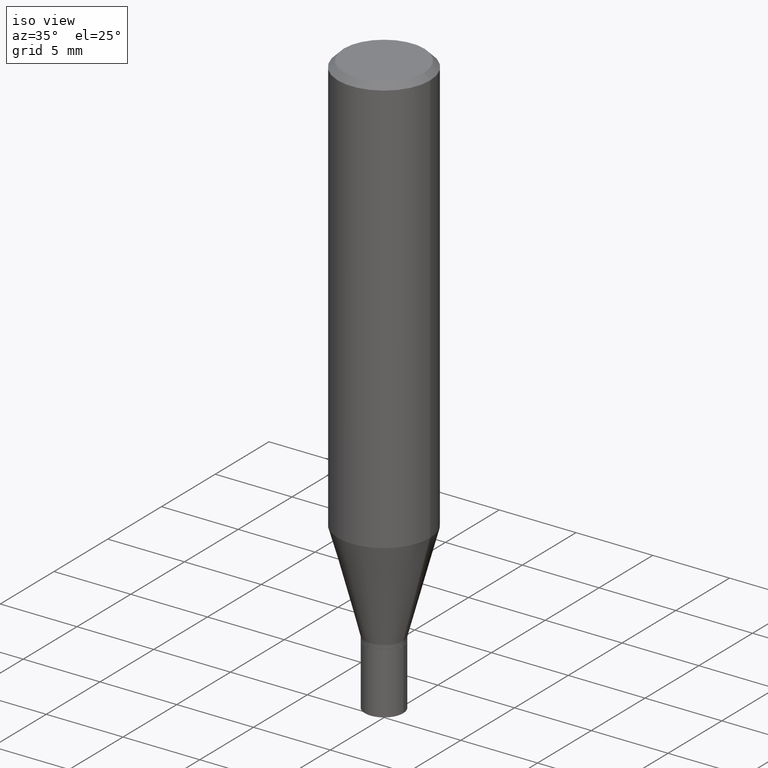
[diagram: clean part render]
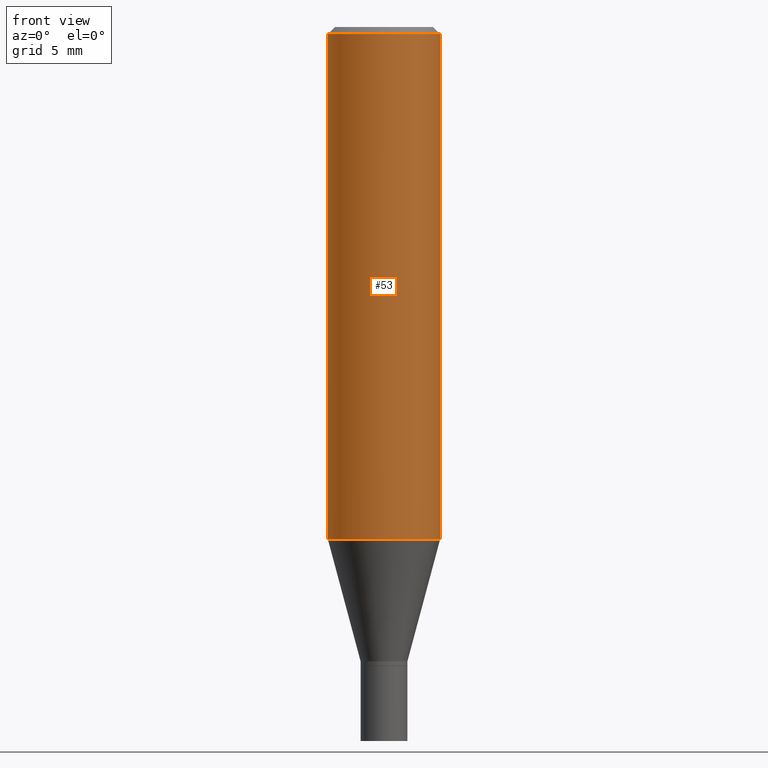
[diagram: tour spotlight — one face highlighted and labeled with its STEP entity id]
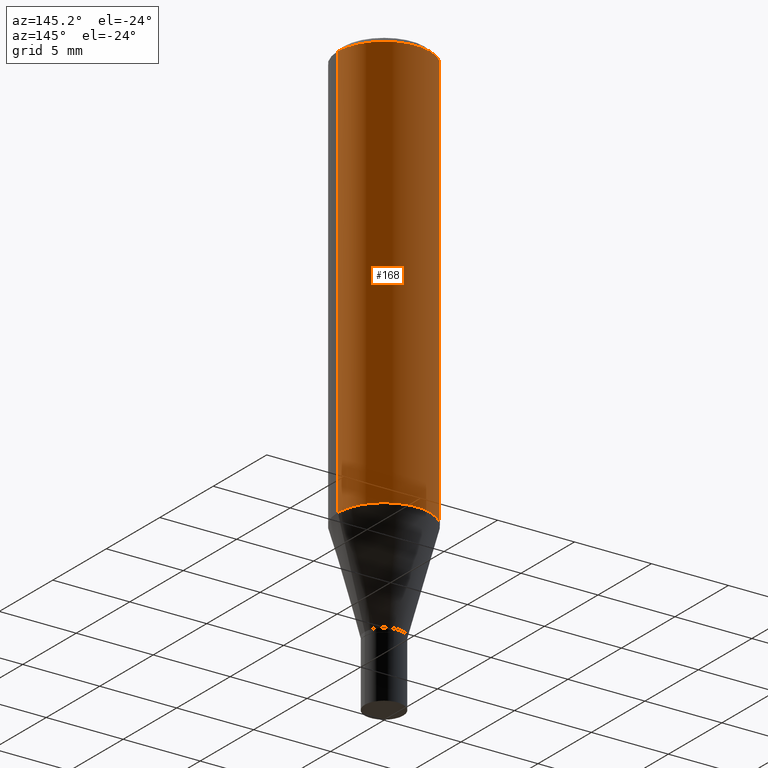
[diagram: tour spotlight — one face highlighted and labeled with its STEP entity id]
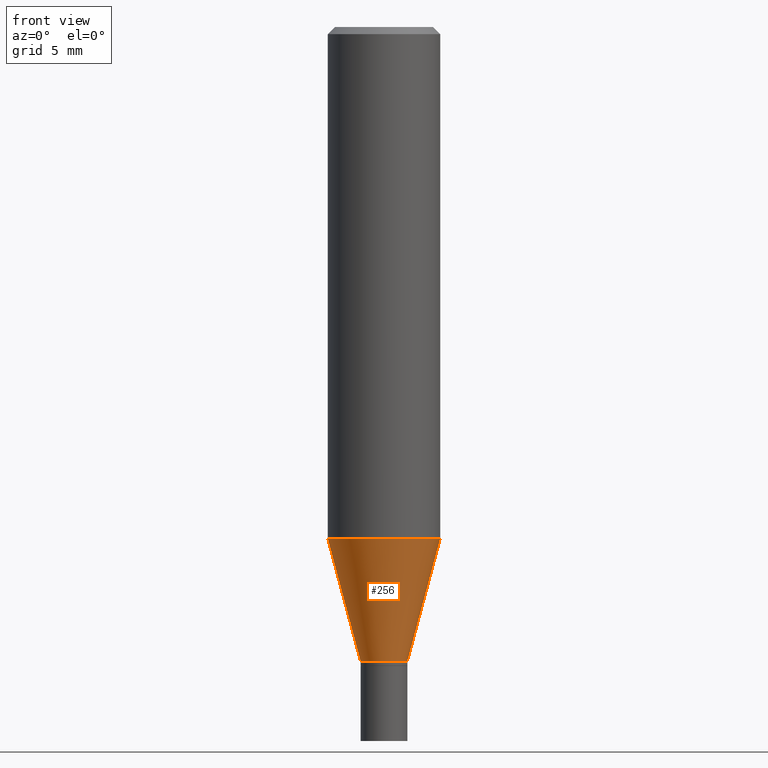
[diagram: tour spotlight — one face highlighted and labeled with its STEP entity id]
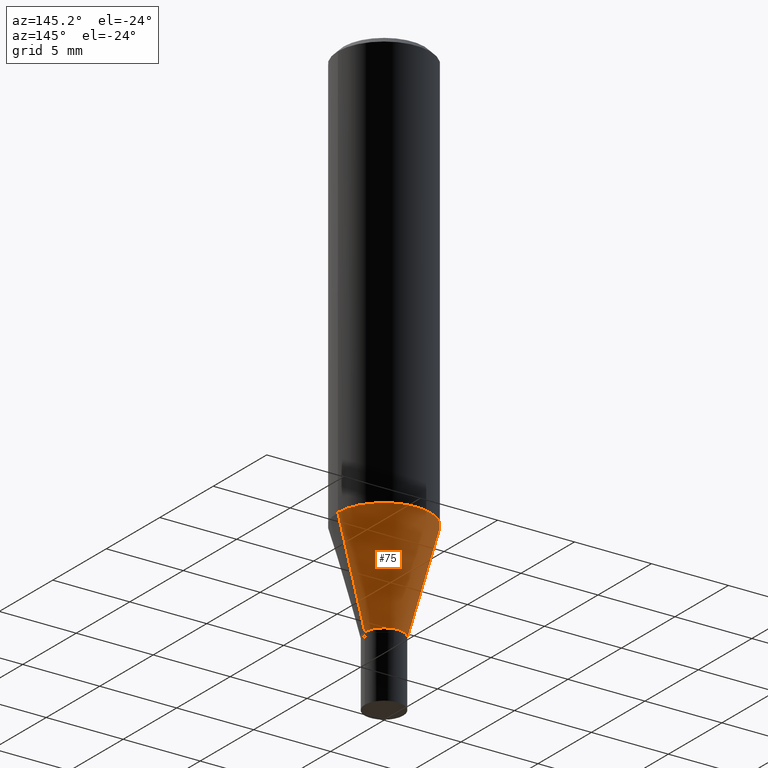
[diagram: tour spotlight — one face highlighted and labeled with its STEP entity id]
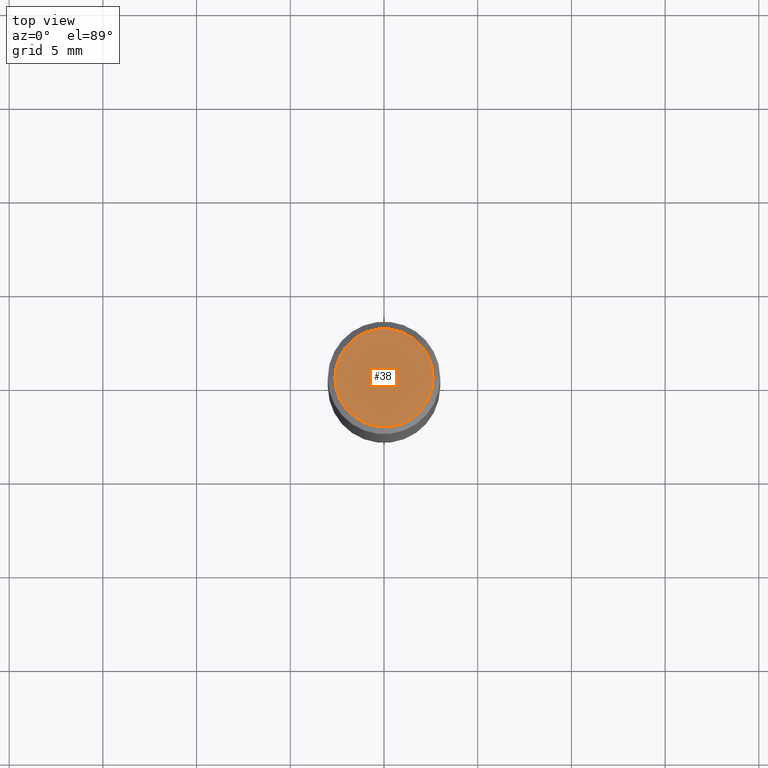
[diagram: tour spotlight — one face highlighted and labeled with its STEP entity id]
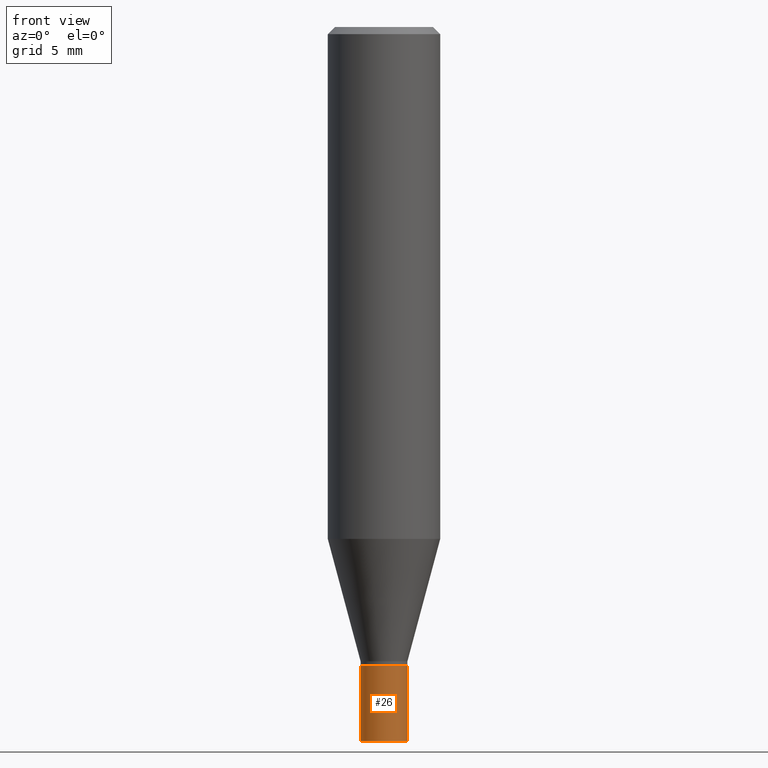
[diagram: tour spotlight — one face highlighted and labeled with its STEP entity id]
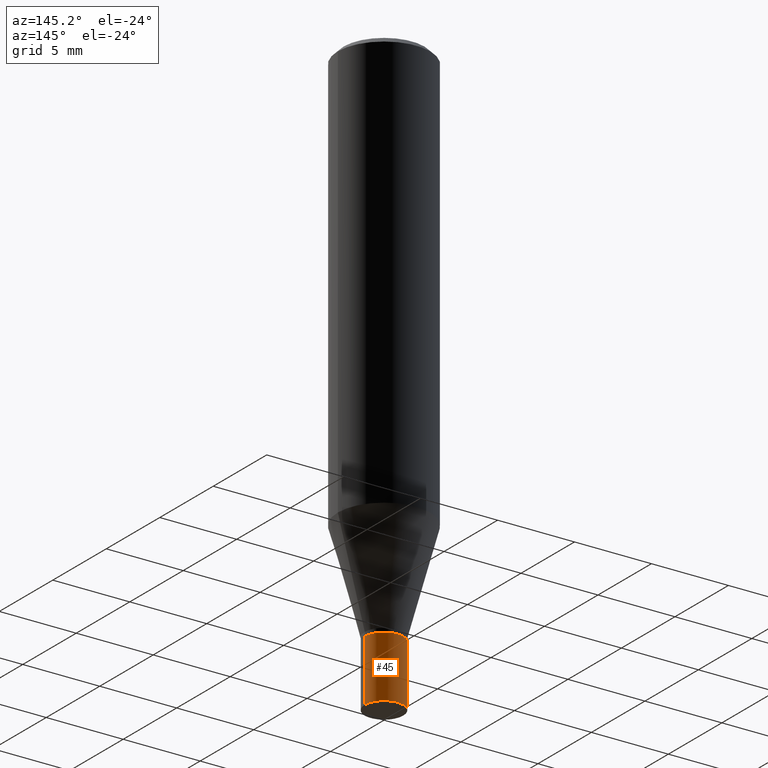
[diagram: tour spotlight — one face highlighted and labeled with its STEP entity id]
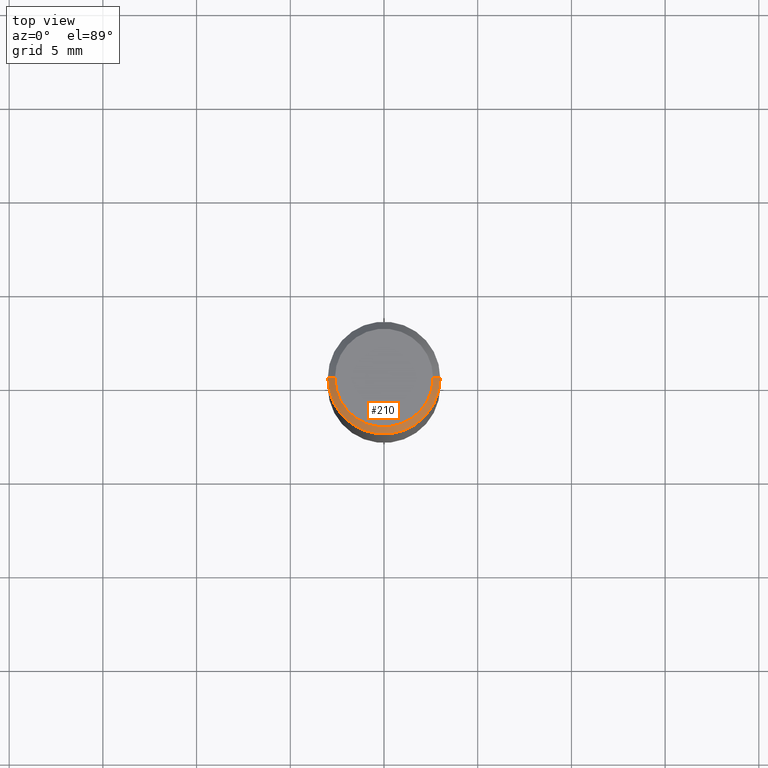
[diagram: tour spotlight — one face highlighted and labeled with its STEP entity id]
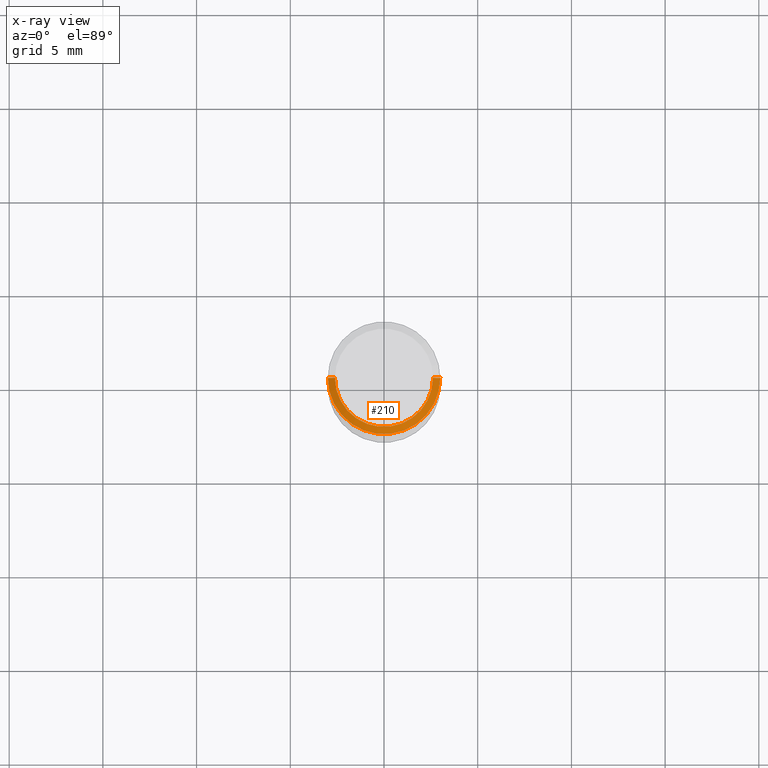
[diagram: x-ray of the same camera — body ghosted, this tour face saturated]
A machine part: a face-by-face anatomy tour. The part has 16 B-rep faces; the first image is the clean iso view, then the 8 largest visible faces are spotlighted one at a time (largest first), each with its STEP entity span.

Face 1 — front view, entity #53. In plain terms, the highlighted cylindrical surface (partial cylindrical patch) has radius 2.9997 mm, axis along (-0, 0, 1).
Definition (entity closure, byte-faithful):
#9 = ORIENTED_EDGE ( 'NONE', *, *, #216, .F. ) ;
#13 = CIRCLE ( 'NONE', #218, 0.1180999999999999966 ) ;
#22 = CARTESIAN_POINT ( 'NONE',  ( 3.668203209277705088E-31, -5.237222008264718399E-17, -0.01499999999999999944 ) ) ;
#23 = DIRECTION ( 'NONE',  ( -2.445468806185136597E-29, 3.491481338843145583E-15, 1.000000000000000000 ) ) ;
#29 = DIRECTION ( 'NONE',  ( -2.445468806185136877E-29, 3.491481338843145188E-15, 1.000000000000000000 ) ) ;
#51 = LINE ( 'NONE', #292, #430 ) ;
#53 = ADVANCED_FACE ( 'NONE', ( #149 ), #398, .T. ) ;
#88 = DIRECTION ( 'NONE',  ( 1.000000000000000000, -6.982962677686265133E-15, 0.000000000000000000 ) ) ;
#109 = CARTESIAN_POINT ( 'NONE',  ( 0.000000000000000000, 0.000000000000000000, 0.000000000000000000 ) ) ;
#123 = DIRECTION ( 'NONE',  ( -2.445468806185136597E-29, 3.491481338843145583E-15, 1.000000000000000000 ) ) ;
#125 = DIRECTION ( 'NONE',  ( -2.445468806185136877E-29, 3.491481338843145188E-15, 1.000000000000000000 ) ) ;
#139 = VERTEX_POINT ( 'NONE', #179 ) ;
#149 = FACE_OUTER_BOUND ( 'NONE', #411, .T. ) ;
#156 = DIRECTION ( 'NONE',  ( 1.000000000000000000, -6.982962677686266711E-15, 0.000000000000000000 ) ) ;
#170 = VERTEX_POINT ( 'NONE', #362 ) ;
#179 = CARTESIAN_POINT ( 'NONE',  ( 0.1180999999999999966, -4.579293198051621365E-15, -1.075361699358504897 ) ) ;
#194 = CARTESIAN_POINT ( 'NONE',  ( 2.629763491147462356E-29, -3.754605305816872313E-15, -1.075361699358504897 ) ) ;
#196 = EDGE_CURVE ( 'NONE', #139, #170, #51, .T. ) ;
#204 = VERTEX_POINT ( 'NONE', #406 ) ;
#216 = EDGE_CURVE ( 'NONE', #311, #170, #13, .T. ) ;
#218 = AXIS2_PLACEMENT_3D ( 'NONE', #22, #123, #156 ) ;
#219 = VECTOR ( 'NONE', #29, 39.37007874015748143 ) ;
#234 = ORIENTED_EDGE ( 'NONE', *, *, #428, .F. ) ;
#244 = AXIS2_PLACEMENT_3D ( 'NONE', #109, #319, #402 ) ;
#276 = ORIENTED_EDGE ( 'NONE', *, *, #196, .T. ) ;
#292 = CARTESIAN_POINT ( 'NONE',  ( 0.1180999999999999966, -8.246878922347480654E-16, 5.758764772215000440E-30 ) ) ;
#311 = VERTEX_POINT ( 'NONE', #380 ) ;
#319 = DIRECTION ( 'NONE',  ( -2.445468806185136597E-29, 3.491481338843145583E-15, 1.000000000000000000 ) ) ;
#334 = EDGE_CURVE ( 'NONE', #204, #139, #378, .T. ) ;
#362 = CARTESIAN_POINT ( 'NONE',  ( 0.1180999999999999966, -8.770601123173952432E-16, -0.01499999999999999944 ) ) ;
#378 = CIRCLE ( 'NONE', #461, 0.1180999999999999966 ) ;
#380 = CARTESIAN_POINT ( 'NONE',  ( -0.1180999999999999966, -1.064337792017081499E-15, -0.01499999999999999944 ) ) ;
#381 = LINE ( 'NONE', #454, #219 ) ;
#398 = CYLINDRICAL_SURFACE ( 'NONE', #244, 0.1180999999999999966 ) ;
#402 = DIRECTION ( 'NONE',  ( 1.000000000000000000, -6.982962677686266711E-15, 4.876176775795936353E-29 ) ) ;
#406 = CARTESIAN_POINT ( 'NONE',  ( -0.1180999999999999966, -2.915454334884194116E-15, -1.075361699358504897 ) ) ;
#411 = EDGE_LOOP ( 'NONE', ( #234, #413, #276, #9 ) ) ;
#413 = ORIENTED_EDGE ( 'NONE', *, *, #334, .T. ) ;
#428 = EDGE_CURVE ( 'NONE', #204, #311, #381, .T. ) ;
#430 = VECTOR ( 'NONE', #125, 39.37007874015748143 ) ;
#454 = CARTESIAN_POINT ( 'NONE',  ( -0.1180999999999999966, 8.391509709326782957E-16, -5.809262341591043784E-30 ) ) ;
#461 = AXIS2_PLACEMENT_3D ( 'NONE', #194, #23, #88 ) ;

Face 2 — auxiliary view, entity #168. In plain terms, the highlighted cylindrical surface (partial cylindrical patch) has radius 2.9997 mm, axis along (-0, 0, 1).
Definition (entity closure, byte-faithful):
#29 = DIRECTION ( 'NONE',  ( -2.445468806185136877E-29, 3.491481338843145188E-15, 1.000000000000000000 ) ) ;
#51 = LINE ( 'NONE', #292, #430 ) ;
#81 = EDGE_CURVE ( 'NONE', #139, #204, #303, .T. ) ;
#82 = CARTESIAN_POINT ( 'NONE',  ( 3.668203209277705088E-31, -5.237222008264718399E-17, -0.01499999999999999944 ) ) ;
#110 = DIRECTION ( 'NONE',  ( -2.445468806185136597E-29, 3.491481338843145583E-15, 1.000000000000000000 ) ) ;
#125 = DIRECTION ( 'NONE',  ( -2.445468806185136877E-29, 3.491481338843145188E-15, 1.000000000000000000 ) ) ;
#126 = AXIS2_PLACEMENT_3D ( 'NONE', #396, #318, #432 ) ;
#133 = EDGE_CURVE ( 'NONE', #170, #311, #252, .T. ) ;
#139 = VERTEX_POINT ( 'NONE', #179 ) ;
#168 = ADVANCED_FACE ( 'NONE', ( #283 ), #209, .T. ) ;
#170 = VERTEX_POINT ( 'NONE', #362 ) ;
#176 = ORIENTED_EDGE ( 'NONE', *, *, #133, .F. ) ;
#179 = CARTESIAN_POINT ( 'NONE',  ( 0.1180999999999999966, -4.579293198051621365E-15, -1.075361699358504897 ) ) ;
#183 = DIRECTION ( 'NONE',  ( -2.445468806185136597E-29, 3.491481338843145583E-15, 1.000000000000000000 ) ) ;
#196 = EDGE_CURVE ( 'NONE', #139, #170, #51, .T. ) ;
#197 = ORIENTED_EDGE ( 'NONE', *, *, #428, .T. ) ;
#200 = ORIENTED_EDGE ( 'NONE', *, *, #196, .F. ) ;
#204 = VERTEX_POINT ( 'NONE', #406 ) ;
#209 = CYLINDRICAL_SURFACE ( 'NONE', #439, 0.1180999999999999966 ) ;
#219 = VECTOR ( 'NONE', #29, 39.37007874015748143 ) ;
#246 = DIRECTION ( 'NONE',  ( 1.000000000000000000, -6.982962677686266711E-15, 4.876176775795936353E-29 ) ) ;
#252 = CIRCLE ( 'NONE', #315, 0.1180999999999999966 ) ;
#257 = CARTESIAN_POINT ( 'NONE',  ( 0.000000000000000000, 0.000000000000000000, 0.000000000000000000 ) ) ;
#283 = FACE_OUTER_BOUND ( 'NONE', #331, .T. ) ;
#292 = CARTESIAN_POINT ( 'NONE',  ( 0.1180999999999999966, -8.246878922347480654E-16, 5.758764772215000440E-30 ) ) ;
#303 = CIRCLE ( 'NONE', #126, 0.1180999999999999966 ) ;
#311 = VERTEX_POINT ( 'NONE', #380 ) ;
#315 = AXIS2_PLACEMENT_3D ( 'NONE', #82, #183, #323 ) ;
#318 = DIRECTION ( 'NONE',  ( -2.445468806185136597E-29, 3.491481338843145583E-15, 1.000000000000000000 ) ) ;
#323 = DIRECTION ( 'NONE',  ( 1.000000000000000000, -6.982962677686266711E-15, 0.000000000000000000 ) ) ;
#331 = EDGE_LOOP ( 'NONE', ( #357, #197, #176, #200 ) ) ;
#357 = ORIENTED_EDGE ( 'NONE', *, *, #81, .T. ) ;
#362 = CARTESIAN_POINT ( 'NONE',  ( 0.1180999999999999966, -8.770601123173952432E-16, -0.01499999999999999944 ) ) ;
#380 = CARTESIAN_POINT ( 'NONE',  ( -0.1180999999999999966, -1.064337792017081499E-15, -0.01499999999999999944 ) ) ;
#381 = LINE ( 'NONE', #454, #219 ) ;
#396 = CARTESIAN_POINT ( 'NONE',  ( 2.629763491147462356E-29, -3.754605305816872313E-15, -1.075361699358504897 ) ) ;
#406 = CARTESIAN_POINT ( 'NONE',  ( -0.1180999999999999966, -2.915454334884194116E-15, -1.075361699358504897 ) ) ;
#428 = EDGE_CURVE ( 'NONE', #204, #311, #381, .T. ) ;
#430 = VECTOR ( 'NONE', #125, 39.37007874015748143 ) ;
#432 = DIRECTION ( 'NONE',  ( 1.000000000000000000, -6.982962677686265133E-15, 0.000000000000000000 ) ) ;
#439 = AXIS2_PLACEMENT_3D ( 'NONE', #257, #110, #246 ) ;
#454 = CARTESIAN_POINT ( 'NONE',  ( -0.1180999999999999966, 8.391509709326782957E-16, -5.809262341591043784E-30 ) ) ;

Face 3 — front view, entity #256. In plain terms, the highlighted conical surface has half-angle 15 deg.
Definition (entity closure, byte-faithful):
#23 = DIRECTION ( 'NONE',  ( -2.445468806185136597E-29, 3.491481338843145583E-15, 1.000000000000000000 ) ) ;
#27 = DIRECTION ( 'NONE',  ( -0.2588190451025214611, 5.211531920934551042E-15, 0.9659258262890682012 ) ) ;
#48 = CONICAL_SURFACE ( 'NONE', #305, 0.04919999999999991741, 0.2617993877991501295 ) ;
#66 = CARTESIAN_POINT ( 'NONE',  ( 0.04919999999999991741, -4.995960647750656128E-15, -1.332500000000000018 ) ) ;
#87 = DIRECTION ( 'NONE',  ( -2.445468806185136597E-29, 3.491481338843145583E-15, 1.000000000000000000 ) ) ;
#88 = DIRECTION ( 'NONE',  ( 1.000000000000000000, -6.982962677686265133E-15, 0.000000000000000000 ) ) ;
#93 = DIRECTION ( 'NONE',  ( -2.445468806185136597E-29, 3.491481338843145583E-15, 1.000000000000000000 ) ) ;
#98 = VECTOR ( 'NONE', #27, 39.37007874015747433 ) ;
#101 = ORIENTED_EDGE ( 'NONE', *, *, #334, .F. ) ;
#119 = ORIENTED_EDGE ( 'NONE', *, *, #393, .F. ) ;
#127 = CARTESIAN_POINT ( 'NONE',  ( 3.258587184241694874E-29, -4.652398884008491604E-15, -1.332500000000000018 ) ) ;
#129 = CARTESIAN_POINT ( 'NONE',  ( 0.04919999999999991741, -4.995960647750656128E-15, -1.332500000000000018 ) ) ;
#134 = LINE ( 'NONE', #195, #98 ) ;
#137 = DIRECTION ( 'NONE',  ( 0.2588190451025214611, 1.565188264969621573E-15, 0.9659258262890682012 ) ) ;
#139 = VERTEX_POINT ( 'NONE', #179 ) ;
#148 = AXIS2_PLACEMENT_3D ( 'NONE', #328, #93, #338 ) ;
#179 = CARTESIAN_POINT ( 'NONE',  ( 0.1180999999999999966, -4.579293198051621365E-15, -1.075361699358504897 ) ) ;
#192 = ORIENTED_EDGE ( 'NONE', *, *, #379, .T. ) ;
#194 = CARTESIAN_POINT ( 'NONE',  ( 2.629763491147462356E-29, -3.754605305816872313E-15, -1.075361699358504897 ) ) ;
#195 = CARTESIAN_POINT ( 'NONE',  ( -0.04919999999999991741, -4.302811858014522949E-15, -1.332500000000000018 ) ) ;
#198 = EDGE_CURVE ( 'NONE', #458, #389, #354, .T. ) ;
#204 = VERTEX_POINT ( 'NONE', #406 ) ;
#256 = ADVANCED_FACE ( 'NONE', ( #341 ), #48, .T. ) ;
#298 = DIRECTION ( 'NONE',  ( 1.000000000000000000, -6.982962677686273810E-15, 0.000000000000000000 ) ) ;
#305 = AXIS2_PLACEMENT_3D ( 'NONE', #127, #87, #298 ) ;
#306 = LINE ( 'NONE', #129, #384 ) ;
#308 = CARTESIAN_POINT ( 'NONE',  ( -0.04919999999999991741, -3.609133096449358138E-15, -1.332500000000000018 ) ) ;
#316 = ORIENTED_EDGE ( 'NONE', *, *, #198, .T. ) ;
#328 = CARTESIAN_POINT ( 'NONE',  ( 3.258587184241694874E-29, -4.652398884008491604E-15, -1.332500000000000018 ) ) ;
#334 = EDGE_CURVE ( 'NONE', #204, #139, #378, .T. ) ;
#338 = DIRECTION ( 'NONE',  ( 1.000000000000000000, -6.982962677686273810E-15, 0.000000000000000000 ) ) ;
#341 = FACE_OUTER_BOUND ( 'NONE', #460, .T. ) ;
#354 = CIRCLE ( 'NONE', #148, 0.04919999999999991741 ) ;
#378 = CIRCLE ( 'NONE', #461, 0.1180999999999999966 ) ;
#379 = EDGE_CURVE ( 'NONE', #389, #139, #306, .T. ) ;
#384 = VECTOR ( 'NONE', #137, 39.37007874015747433 ) ;
#389 = VERTEX_POINT ( 'NONE', #66 ) ;
#393 = EDGE_CURVE ( 'NONE', #458, #204, #134, .T. ) ;
#406 = CARTESIAN_POINT ( 'NONE',  ( -0.1180999999999999966, -2.915454334884194116E-15, -1.075361699358504897 ) ) ;
#458 = VERTEX_POINT ( 'NONE', #308 ) ;
#460 = EDGE_LOOP ( 'NONE', ( #119, #316, #192, #101 ) ) ;
#461 = AXIS2_PLACEMENT_3D ( 'NONE', #194, #23, #88 ) ;

Face 4 — auxiliary view, entity #75. In plain terms, the highlighted conical surface has half-angle 15 deg.
Definition (entity closure, byte-faithful):
#17 = DIRECTION ( 'NONE',  ( 1.000000000000000000, -6.982962677686273810E-15, 0.000000000000000000 ) ) ;
#27 = DIRECTION ( 'NONE',  ( -0.2588190451025214611, 5.211531920934551042E-15, 0.9659258262890682012 ) ) ;
#58 = DIRECTION ( 'NONE',  ( -2.445468806185136597E-29, 3.491481338843145583E-15, 1.000000000000000000 ) ) ;
#66 = CARTESIAN_POINT ( 'NONE',  ( 0.04919999999999991741, -4.995960647750656128E-15, -1.332500000000000018 ) ) ;
#75 = ADVANCED_FACE ( 'NONE', ( #111 ), #261, .T. ) ;
#81 = EDGE_CURVE ( 'NONE', #139, #204, #303, .T. ) ;
#83 = DIRECTION ( 'NONE',  ( -2.445468806185136597E-29, 3.491481338843145583E-15, 1.000000000000000000 ) ) ;
#98 = VECTOR ( 'NONE', #27, 39.37007874015747433 ) ;
#111 = FACE_OUTER_BOUND ( 'NONE', #264, .T. ) ;
#126 = AXIS2_PLACEMENT_3D ( 'NONE', #396, #318, #432 ) ;
#129 = CARTESIAN_POINT ( 'NONE',  ( 0.04919999999999991741, -4.995960647750656128E-15, -1.332500000000000018 ) ) ;
#134 = LINE ( 'NONE', #195, #98 ) ;
#137 = DIRECTION ( 'NONE',  ( 0.2588190451025214611, 1.565188264969621573E-15, 0.9659258262890682012 ) ) ;
#139 = VERTEX_POINT ( 'NONE', #179 ) ;
#146 = AXIS2_PLACEMENT_3D ( 'NONE', #412, #58, #17 ) ;
#178 = DIRECTION ( 'NONE',  ( 1.000000000000000000, -6.982962677686273810E-15, 0.000000000000000000 ) ) ;
#179 = CARTESIAN_POINT ( 'NONE',  ( 0.1180999999999999966, -4.579293198051621365E-15, -1.075361699358504897 ) ) ;
#195 = CARTESIAN_POINT ( 'NONE',  ( -0.04919999999999991741, -4.302811858014522949E-15, -1.332500000000000018 ) ) ;
#204 = VERTEX_POINT ( 'NONE', #406 ) ;
#221 = CIRCLE ( 'NONE', #146, 0.04919999999999991741 ) ;
#261 = CONICAL_SURFACE ( 'NONE', #462, 0.04919999999999991741, 0.2617993877991501295 ) ;
#264 = EDGE_LOOP ( 'NONE', ( #352, #266, #355, #391 ) ) ;
#266 = ORIENTED_EDGE ( 'NONE', *, *, #393, .T. ) ;
#290 = CARTESIAN_POINT ( 'NONE',  ( 3.258587184241694874E-29, -4.652398884008491604E-15, -1.332500000000000018 ) ) ;
#303 = CIRCLE ( 'NONE', #126, 0.1180999999999999966 ) ;
#306 = LINE ( 'NONE', #129, #384 ) ;
#308 = CARTESIAN_POINT ( 'NONE',  ( -0.04919999999999991741, -3.609133096449358138E-15, -1.332500000000000018 ) ) ;
#318 = DIRECTION ( 'NONE',  ( -2.445468806185136597E-29, 3.491481338843145583E-15, 1.000000000000000000 ) ) ;
#332 = EDGE_CURVE ( 'NONE', #389, #458, #221, .T. ) ;
#352 = ORIENTED_EDGE ( 'NONE', *, *, #332, .T. ) ;
#355 = ORIENTED_EDGE ( 'NONE', *, *, #81, .F. ) ;
#379 = EDGE_CURVE ( 'NONE', #389, #139, #306, .T. ) ;
#384 = VECTOR ( 'NONE', #137, 39.37007874015747433 ) ;
#389 = VERTEX_POINT ( 'NONE', #66 ) ;
#391 = ORIENTED_EDGE ( 'NONE', *, *, #379, .F. ) ;
#393 = EDGE_CURVE ( 'NONE', #458, #204, #134, .T. ) ;
#396 = CARTESIAN_POINT ( 'NONE',  ( 2.629763491147462356E-29, -3.754605305816872313E-15, -1.075361699358504897 ) ) ;
#406 = CARTESIAN_POINT ( 'NONE',  ( -0.1180999999999999966, -2.915454334884194116E-15, -1.075361699358504897 ) ) ;
#412 = CARTESIAN_POINT ( 'NONE',  ( 3.258587184241694874E-29, -4.652398884008491604E-15, -1.332500000000000018 ) ) ;
#432 = DIRECTION ( 'NONE',  ( 1.000000000000000000, -6.982962677686265133E-15, 0.000000000000000000 ) ) ;
#458 = VERTEX_POINT ( 'NONE', #308 ) ;
#462 = AXIS2_PLACEMENT_3D ( 'NONE', #290, #83, #178 ) ;

Face 5 — top view, entity #38. In plain terms, the highlighted planar face has unit normal (0, -0, -1).
Definition (entity closure, byte-faithful):
#7 = FACE_OUTER_BOUND ( 'NONE', #206, .T. ) ;
#38 = ADVANCED_FACE ( 'NONE', ( #7 ), #433, .F. ) ;
#39 = AXIS2_PLACEMENT_3D ( 'NONE', #171, #233, #434 ) ;
#90 = CARTESIAN_POINT ( 'NONE',  ( -2.356111900284270779E-44, 3.363903359250623461E-30, 9.634602143871708828E-16 ) ) ;
#118 = DIRECTION ( 'NONE',  ( -2.445468806185136597E-29, 3.491481338843145583E-15, 1.000000000000000000 ) ) ;
#136 = VERTEX_POINT ( 'NONE', #140 ) ;
#140 = CARTESIAN_POINT ( 'NONE',  ( -0.1031000000000000111, 7.461295621107793201E-16, 9.634602143871657552E-16 ) ) ;
#171 = CARTESIAN_POINT ( 'NONE',  ( -2.356111900284270779E-44, 3.363903359250623461E-30, 9.634602143871708828E-16 ) ) ;
#206 = EDGE_LOOP ( 'NONE', ( #317, #310 ) ) ;
#215 = CARTESIAN_POINT ( 'NONE',  ( 7.199434520694541042E-16, 0.1031000000000000111, 1.217583811588571567E-16 ) ) ;
#224 = VERTEX_POINT ( 'NONE', #444 ) ;
#232 = CIRCLE ( 'NONE', #39, 0.1031000000000000111 ) ;
#233 = DIRECTION ( 'NONE',  ( -2.445468806185136597E-29, 3.491481338843145583E-15, 1.000000000000000000 ) ) ;
#237 = EDGE_CURVE ( 'NONE', #224, #136, #326, .T. ) ;
#245 = DIRECTION ( 'NONE',  ( 2.438088387897960049E-29, -3.491481338843145188E-15, -1.000000000000000000 ) ) ;
#269 = AXIS2_PLACEMENT_3D ( 'NONE', #90, #118, #410 ) ;
#310 = ORIENTED_EDGE ( 'NONE', *, *, #237, .T. ) ;
#317 = ORIENTED_EDGE ( 'NONE', *, *, #358, .T. ) ;
#326 = CIRCLE ( 'NONE', #269, 0.1031000000000000111 ) ;
#358 = EDGE_CURVE ( 'NONE', #136, #224, #232, .T. ) ;
#397 = DIRECTION ( 'NONE',  ( -1.000000000000000000, 6.982962677686265922E-15, -4.876176775795935793E-29 ) ) ;
#407 = AXIS2_PLACEMENT_3D ( 'NONE', #215, #245, #397 ) ;
#410 = DIRECTION ( 'NONE',  ( 1.000000000000000000, -6.982962677686265922E-15, 4.824495916043694704E-29 ) ) ;
#433 = PLANE ( 'NONE',  #407 ) ;
#434 = DIRECTION ( 'NONE',  ( 1.000000000000000000, -6.982962677686265922E-15, 4.824495916043694704E-29 ) ) ;
#444 = CARTESIAN_POINT ( 'NONE',  ( 0.1031000000000000111, -7.849571885948532984E-16, 9.634602143871762076E-16 ) ) ;

Face 6 — front view, entity #26. In plain terms, the highlighted cylindrical surface (edge-blend (fillet) strip) has radius 1.2497 mm, axis along (-0, 0, 1).
Definition (entity closure, byte-faithful):
#1 = ORIENTED_EDGE ( 'NONE', *, *, #40, .F. ) ;
#4 = CARTESIAN_POINT ( 'NONE',  ( 0.000000000000000000, 0.000000000000000000, 0.000000000000000000 ) ) ;
#11 = VECTOR ( 'NONE', #34, 39.37007874015748143 ) ;
#12 = CYLINDRICAL_SURFACE ( 'NONE', #141, 0.04920000000000000068 ) ;
#26 = ADVANCED_FACE ( 'NONE', ( #74 ), #12, .T. ) ;
#31 = DIRECTION ( 'NONE',  ( -2.445468806185136597E-29, 3.491481338843145583E-15, 1.000000000000000000 ) ) ;
#34 = DIRECTION ( 'NONE',  ( -2.445468806185136877E-29, 3.491481338843145188E-15, 1.000000000000000000 ) ) ;
#35 = EDGE_LOOP ( 'NONE', ( #94, #173, #130, #1 ) ) ;
#40 = EDGE_CURVE ( 'NONE', #231, #429, #288, .T. ) ;
#41 = DIRECTION ( 'NONE',  ( -2.445468806185136597E-29, 3.491481338843145583E-15, 1.000000000000000000 ) ) ;
#59 = DIRECTION ( 'NONE',  ( 1.000000000000000000, -6.982962677686261977E-15, 0.000000000000000000 ) ) ;
#68 = VERTEX_POINT ( 'NONE', #359 ) ;
#74 = FACE_OUTER_BOUND ( 'NONE', #35, .T. ) ;
#76 = DIRECTION ( 'NONE',  ( 1.000000000000000000, -6.982962677686266711E-15, 4.876176775795935793E-29 ) ) ;
#92 = AXIS2_PLACEMENT_3D ( 'NONE', #438, #41, #217 ) ;
#94 = ORIENTED_EDGE ( 'NONE', *, *, #340, .F. ) ;
#106 = VECTOR ( 'NONE', #294, 39.37007874015748143 ) ;
#130 = ORIENTED_EDGE ( 'NONE', *, *, #465, .T. ) ;
#131 = CARTESIAN_POINT ( 'NONE',  ( 0.04920000000000000068, -3.435617637421643269E-16, 2.399078973691600472E-30 ) ) ;
#141 = AXIS2_PLACEMENT_3D ( 'NONE', #4, #142, #76 ) ;
#142 = DIRECTION ( 'NONE',  ( -2.445468806185136597E-29, 3.491481338843145583E-15, 1.000000000000000000 ) ) ;
#155 = LINE ( 'NONE', #302, #106 ) ;
#172 = AXIS2_PLACEMENT_3D ( 'NONE', #175, #31, #59 ) ;
#173 = ORIENTED_EDGE ( 'NONE', *, *, #372, .T. ) ;
#175 = CARTESIAN_POINT ( 'NONE',  ( 3.668203209277704895E-29, -5.237222008264718177E-15, -1.500000000000000222 ) ) ;
#217 = DIRECTION ( 'NONE',  ( 1.000000000000000000, -6.982962677686261977E-15, 0.000000000000000000 ) ) ;
#231 = VERTEX_POINT ( 'NONE', #267 ) ;
#267 = CARTESIAN_POINT ( 'NONE',  ( -0.04920000000000000068, -4.612680826836852060E-15, -1.342500000000000249 ) ) ;
#288 = CIRCLE ( 'NONE', #92, 0.04920000000000000068 ) ;
#294 = DIRECTION ( 'NONE',  ( -2.445468806185136877E-29, 3.491481338843145188E-15, 1.000000000000000000 ) ) ;
#302 = CARTESIAN_POINT ( 'NONE',  ( -0.04920000000000000068, 3.495870259939692963E-16, -2.420116064405413767E-30 ) ) ;
#340 = EDGE_CURVE ( 'NONE', #68, #231, #155, .T. ) ;
#349 = CARTESIAN_POINT ( 'NONE',  ( 0.04920000000000000068, -5.580783772006882701E-15, -1.500000000000000222 ) ) ;
#350 = VERTEX_POINT ( 'NONE', #349 ) ;
#359 = CARTESIAN_POINT ( 'NONE',  ( -0.04920000000000000068, -4.612680826836852060E-15, -1.500000000000000222 ) ) ;
#367 = CIRCLE ( 'NONE', #172, 0.04920000000000000068 ) ;
#372 = EDGE_CURVE ( 'NONE', #68, #350, #367, .T. ) ;
#429 = VERTEX_POINT ( 'NONE', #459 ) ;
#438 = CARTESIAN_POINT ( 'NONE',  ( 3.283041872303546419E-29, -4.687313697396923253E-15, -1.342500000000000249 ) ) ;
#457 = LINE ( 'NONE', #131, #11 ) ;
#459 = CARTESIAN_POINT ( 'NONE',  ( 0.04920000000000000068, -5.030875461139087777E-15, -1.342500000000000249 ) ) ;
#465 = EDGE_CURVE ( 'NONE', #350, #429, #457, .T. ) ;

Face 7 — auxiliary view, entity #45. In plain terms, the highlighted cylindrical surface (edge-blend (fillet) strip) has radius 1.2497 mm, axis along (-0, 0, 1).
Definition (entity closure, byte-faithful):
#6 = EDGE_CURVE ( 'NONE', #429, #231, #227, .T. ) ;
#11 = VECTOR ( 'NONE', #34, 39.37007874015748143 ) ;
#34 = DIRECTION ( 'NONE',  ( -2.445468806185136877E-29, 3.491481338843145188E-15, 1.000000000000000000 ) ) ;
#36 = CARTESIAN_POINT ( 'NONE',  ( 3.283041872303546419E-29, -4.687313697396923253E-15, -1.342500000000000249 ) ) ;
#44 = DIRECTION ( 'NONE',  ( -2.445468806185136597E-29, 3.491481338843145583E-15, 1.000000000000000000 ) ) ;
#45 = ADVANCED_FACE ( 'NONE', ( #207 ), #143, .T. ) ;
#63 = ORIENTED_EDGE ( 'NONE', *, *, #177, .T. ) ;
#65 = ORIENTED_EDGE ( 'NONE', *, *, #340, .T. ) ;
#68 = VERTEX_POINT ( 'NONE', #359 ) ;
#99 = ORIENTED_EDGE ( 'NONE', *, *, #465, .F. ) ;
#106 = VECTOR ( 'NONE', #294, 39.37007874015748143 ) ;
#131 = CARTESIAN_POINT ( 'NONE',  ( 0.04920000000000000068, -3.435617637421643269E-16, 2.399078973691600472E-30 ) ) ;
#143 = CYLINDRICAL_SURFACE ( 'NONE', #366, 0.04920000000000000068 ) ;
#155 = LINE ( 'NONE', #302, #106 ) ;
#177 = EDGE_CURVE ( 'NONE', #350, #68, #392, .T. ) ;
#191 = DIRECTION ( 'NONE',  ( 1.000000000000000000, -6.982962677686261977E-15, 0.000000000000000000 ) ) ;
#207 = FACE_OUTER_BOUND ( 'NONE', #426, .T. ) ;
#222 = DIRECTION ( 'NONE',  ( -2.445468806185136597E-29, 3.491481338843145583E-15, 1.000000000000000000 ) ) ;
#227 = CIRCLE ( 'NONE', #345, 0.04920000000000000068 ) ;
#231 = VERTEX_POINT ( 'NONE', #267 ) ;
#243 = ORIENTED_EDGE ( 'NONE', *, *, #6, .F. ) ;
#267 = CARTESIAN_POINT ( 'NONE',  ( -0.04920000000000000068, -4.612680826836852060E-15, -1.342500000000000249 ) ) ;
#281 = DIRECTION ( 'NONE',  ( -2.445468806185136597E-29, 3.491481338843145583E-15, 1.000000000000000000 ) ) ;
#282 = AXIS2_PLACEMENT_3D ( 'NONE', #360, #222, #191 ) ;
#285 = CARTESIAN_POINT ( 'NONE',  ( 0.000000000000000000, 0.000000000000000000, 0.000000000000000000 ) ) ;
#294 = DIRECTION ( 'NONE',  ( -2.445468806185136877E-29, 3.491481338843145188E-15, 1.000000000000000000 ) ) ;
#302 = CARTESIAN_POINT ( 'NONE',  ( -0.04920000000000000068, 3.495870259939692963E-16, -2.420116064405413767E-30 ) ) ;
#321 = DIRECTION ( 'NONE',  ( 1.000000000000000000, -6.982962677686261977E-15, 0.000000000000000000 ) ) ;
#340 = EDGE_CURVE ( 'NONE', #68, #231, #155, .T. ) ;
#345 = AXIS2_PLACEMENT_3D ( 'NONE', #36, #281, #321 ) ;
#349 = CARTESIAN_POINT ( 'NONE',  ( 0.04920000000000000068, -5.580783772006882701E-15, -1.500000000000000222 ) ) ;
#350 = VERTEX_POINT ( 'NONE', #349 ) ;
#359 = CARTESIAN_POINT ( 'NONE',  ( -0.04920000000000000068, -4.612680826836852060E-15, -1.500000000000000222 ) ) ;
#360 = CARTESIAN_POINT ( 'NONE',  ( 3.668203209277704895E-29, -5.237222008264718177E-15, -1.500000000000000222 ) ) ;
#363 = DIRECTION ( 'NONE',  ( 1.000000000000000000, -6.982962677686266711E-15, 4.876176775795935793E-29 ) ) ;
#366 = AXIS2_PLACEMENT_3D ( 'NONE', #285, #44, #363 ) ;
#392 = CIRCLE ( 'NONE', #282, 0.04920000000000000068 ) ;
#426 = EDGE_LOOP ( 'NONE', ( #63, #65, #243, #99 ) ) ;
#429 = VERTEX_POINT ( 'NONE', #459 ) ;
#457 = LINE ( 'NONE', #131, #11 ) ;
#459 = CARTESIAN_POINT ( 'NONE',  ( 0.04920000000000000068, -5.030875461139087777E-15, -1.342500000000000249 ) ) ;
#465 = EDGE_CURVE ( 'NONE', #350, #429, #457, .T. ) ;

Face 8 — top view, entity #210. An x-ray twin of the same camera follows (body ghosted, this face saturated) — the face is partly hidden behind the body. In plain terms, the highlighted conical surface has half-angle 45 deg.
Definition (entity closure, byte-faithful):
#13 = CIRCLE ( 'NONE', #218, 0.1180999999999999966 ) ;
#22 = CARTESIAN_POINT ( 'NONE',  ( 3.668203209277705088E-31, -5.237222008264718399E-17, -0.01499999999999999944 ) ) ;
#39 = AXIS2_PLACEMENT_3D ( 'NONE', #171, #233, #434 ) ;
#50 = DIRECTION ( 'NONE',  ( 2.445468806185136597E-29, -3.491481338843145583E-15, -1.000000000000000000 ) ) ;
#104 = ORIENTED_EDGE ( 'NONE', *, *, #216, .T. ) ;
#123 = DIRECTION ( 'NONE',  ( -2.445468806185136597E-29, 3.491481338843145583E-15, 1.000000000000000000 ) ) ;
#132 = ORIENTED_EDGE ( 'NONE', *, *, #271, .T. ) ;
#136 = VERTEX_POINT ( 'NONE', #140 ) ;
#140 = CARTESIAN_POINT ( 'NONE',  ( -0.1031000000000000111, 7.461295621107793201E-16, 9.634602143871657552E-16 ) ) ;
#153 = DIRECTION ( 'NONE',  ( -0.7071067811865247021, 2.468850131082017641E-15, -0.7071067811865703323 ) ) ;
#156 = DIRECTION ( 'NONE',  ( 1.000000000000000000, -6.982962677686266711E-15, 0.000000000000000000 ) ) ;
#162 = LINE ( 'NONE', #390, #415 ) ;
#170 = VERTEX_POINT ( 'NONE', #362 ) ;
#171 = CARTESIAN_POINT ( 'NONE',  ( -2.356111900284270779E-44, 3.363903359250623461E-30, 9.634602143871708828E-16 ) ) ;
#190 = CARTESIAN_POINT ( 'NONE',  ( 3.668203209277705088E-31, -5.237222008264718399E-17, -0.01499999999999999944 ) ) ;
#210 = ADVANCED_FACE ( 'NONE', ( #370 ), #346, .T. ) ;
#216 = EDGE_CURVE ( 'NONE', #311, #170, #13, .T. ) ;
#218 = AXIS2_PLACEMENT_3D ( 'NONE', #22, #123, #156 ) ;
#224 = VERTEX_POINT ( 'NONE', #444 ) ;
#232 = CIRCLE ( 'NONE', #39, 0.1031000000000000111 ) ;
#233 = DIRECTION ( 'NONE',  ( -2.445468806185136597E-29, 3.491481338843145583E-15, 1.000000000000000000 ) ) ;
#265 = CARTESIAN_POINT ( 'NONE',  ( -0.1180999999999999966, 7.723156721521009862E-16, -0.01499999999999999944 ) ) ;
#271 = EDGE_CURVE ( 'NONE', #136, #311, #301, .T. ) ;
#301 = LINE ( 'NONE', #265, #394 ) ;
#307 = ORIENTED_EDGE ( 'NONE', *, *, #356, .F. ) ;
#311 = VERTEX_POINT ( 'NONE', #380 ) ;
#320 = ORIENTED_EDGE ( 'NONE', *, *, #358, .F. ) ;
#346 = CONICAL_SURFACE ( 'NONE', #416, 0.1180999999999999966, 0.7853981633974160825 ) ;
#356 = EDGE_CURVE ( 'NONE', #224, #170, #162, .T. ) ;
#358 = EDGE_CURVE ( 'NONE', #136, #224, #232, .T. ) ;
#362 = CARTESIAN_POINT ( 'NONE',  ( 0.1180999999999999966, -8.770601123173952432E-16, -0.01499999999999999944 ) ) ;
#365 = DIRECTION ( 'NONE',  ( -1.000000000000000000, 6.982962677686266711E-15, 0.000000000000000000 ) ) ;
#370 = FACE_OUTER_BOUND ( 'NONE', #427, .T. ) ;
#380 = CARTESIAN_POINT ( 'NONE',  ( -0.1180999999999999966, -1.064337792017081499E-15, -0.01499999999999999944 ) ) ;
#390 = CARTESIAN_POINT ( 'NONE',  ( 0.1180999999999999966, -8.625970336194650129E-16, -0.01499999999999999944 ) ) ;
#394 = VECTOR ( 'NONE', #153, 39.37007874015748143 ) ;
#415 = VECTOR ( 'NONE', #418, 39.37007874015748143 ) ;
#416 = AXIS2_PLACEMENT_3D ( 'NONE', #190, #50, #365 ) ;
#418 = DIRECTION ( 'NONE',  ( 0.7071067811865247021, -7.319954787623178737E-15, -0.7071067811865703323 ) ) ;
#427 = EDGE_LOOP ( 'NONE', ( #307, #320, #132, #104 ) ) ;
#434 = DIRECTION ( 'NONE',  ( 1.000000000000000000, -6.982962677686265922E-15, 4.824495916043694704E-29 ) ) ;
#444 = CARTESIAN_POINT ( 'NONE',  ( 0.1031000000000000111, -7.849571885948532984E-16, 9.634602143871762076E-16 ) ) ;